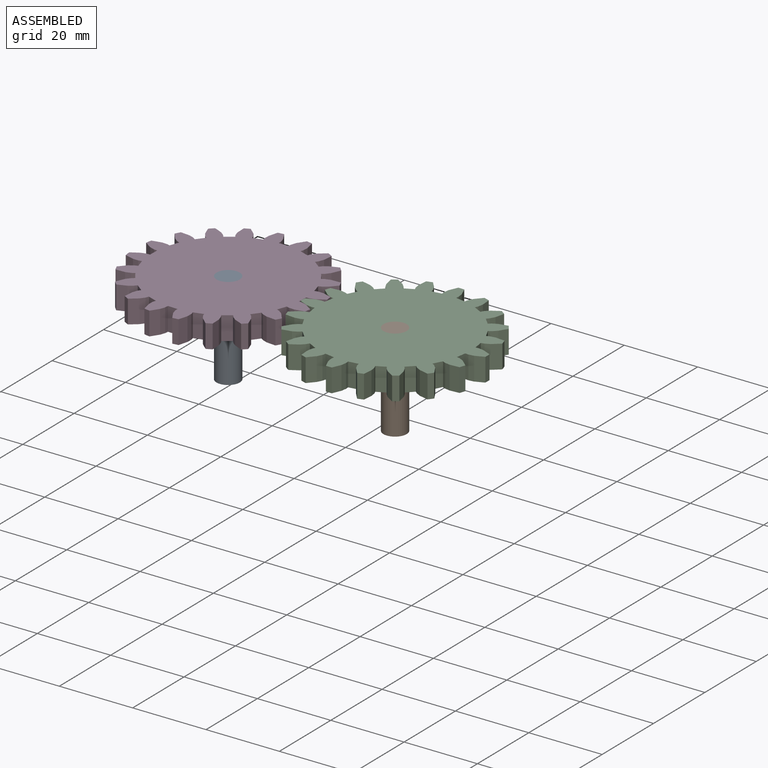
[diagram: assembled view]
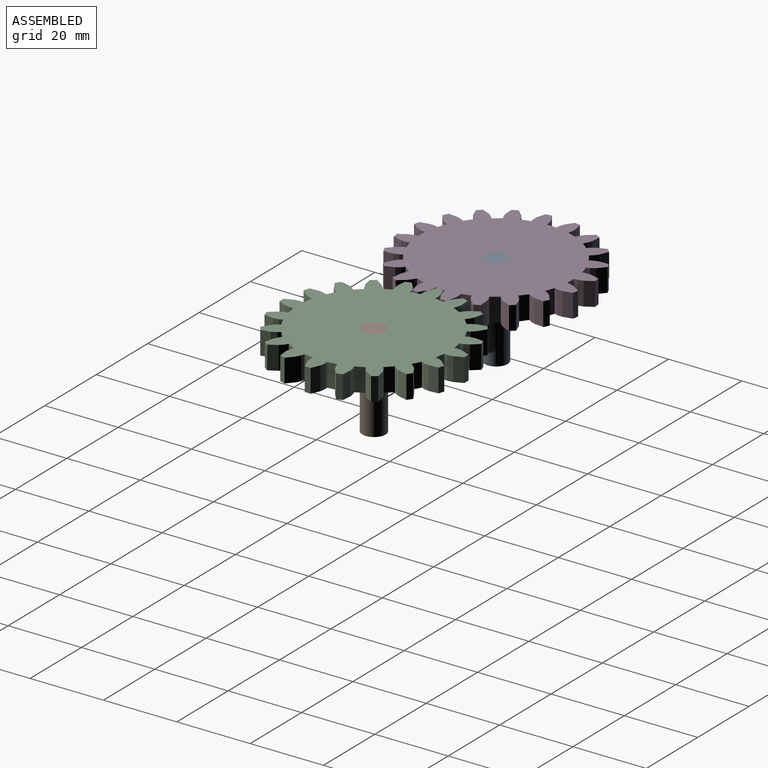
[diagram: assembled view, second angle]
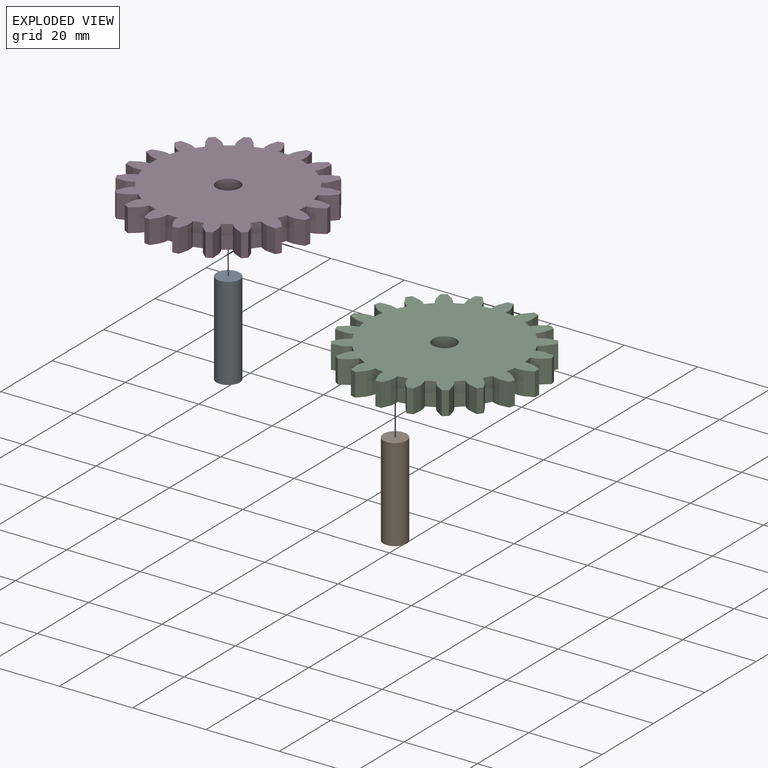
[diagram: exploded view]
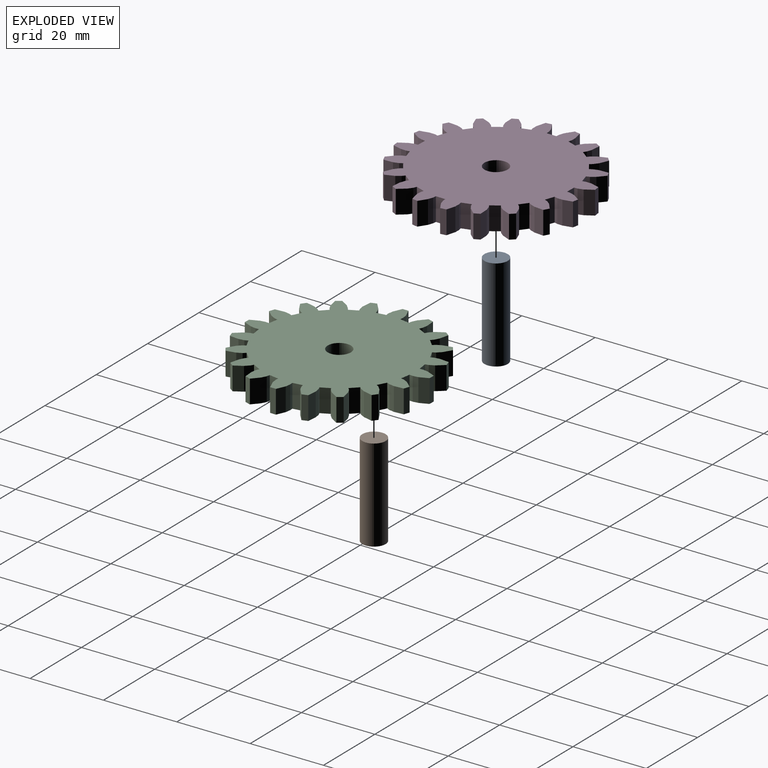
[diagram: exploded view, second angle]
ASSEMBLY  parts=4 mates=2
PART A: 3 faces, bbox 6.4x6.4x25.4 mm
  f0: cylinder r=3.17mm len=25.4mm, axis (0,0,-1), area 506.7mm2, adj f1,f2
  f1: plane 6.35x6.35mm, normal (0,0,1), area 31.7mm2, adj f0
  f2: plane 6.35x6.35mm, normal (0,0,-1), area 31.7mm2, adj f0
PART B: 3 faces, bbox 6.4x6.4x25.4 mm
  f0: cylinder r=3.17mm len=25.4mm, axis (0,0,-1), area 506.7mm2, adj f1,f2
  f1: plane 6.35x6.35mm, normal (0,0,1), area 31.7mm2, adj f0
  f2: plane 6.35x6.35mm, normal (0,0,-1), area 31.7mm2, adj f0
PART C: 163 faces, bbox 50.8x50.8x6.4 mm
  f0: plane 6.35x0.91mm, normal (-0.09,1,0), area 5.8mm2, adj f1,f159,f161,f162
  f1: plane 6.35x2.61mm, normal (0.99,0.16,0), area 16.8mm2, adj f0,f2,f161,f162
  f2: plane 6.35x0.89mm, normal (0.22,-0.98,0), area 5.8mm2, adj f1,f3,f161,f162
  f3: plane 6.35x1.28mm, normal (0.45,-0.89,0), area 9.1mm2, adj f2,f4,f161,f162
  f4: plane 6.35x1.94mm, normal (0.66,-0.75,0), area 16.4mm2, adj f3,f5,f161,f162
  f5: plane 6.35x1.53mm, normal (0.95,0.31,0), area 10.2mm2, adj f4,f6,f161,f162
  f6: plane 6.35x2.57mm, normal (0.09,1,0), area 16.4mm2, adj f5,f7,f161,f162
  f7: plane 6.35x1.41mm, normal (-0.16,0.99,0), area 9.1mm2, adj f6,f8,f161,f162
  f8: plane 6.35x0.84mm, normal (-0.4,0.92,0), area 5.8mm2, adj f7,f9,f161,f162
  f9: plane 6.35x2.36mm, normal (0.89,0.45,0), area 16.8mm2, adj f8,f10,f161,f162
  f10: plane 6.35x0.79mm, normal (0.51,-0.86,0), area 5.8mm2, adj f9,f11,f161,f162
  f11: plane 6.35x1.02mm, normal (0.7,-0.71,0), area 9.1mm2, adj f10,f12,f161,f162
  f12: plane 6.35x2.21mm, normal (0.86,-0.51,0), area 16.4mm2, adj f11,f13,f161,f162
  f13: plane 6.35x1.3mm, normal (0.81,0.59,0), area 10.2mm2, adj f12,f14,f161,f162
  f14: plane 6.35x2.51mm, normal (-0.22,0.97,0), area 16.4mm2, adj f13,f15,f161,f162
  f15: plane 6.35x1.27mm, normal (-0.46,0.89,0), area 9.1mm2, adj f14,f16,f161,f162
  f16: plane 6.35x0.69mm, normal (-0.66,0.75,0), area 5.8mm2, adj f15,f17,f161,f162
  f17: plane 6.35x1.87mm, normal (0.71,0.71,0), area 16.8mm2, adj f16,f18,f161,f162
  f18: plane 6.35x0.69mm, normal (0.75,-0.66,0), area 5.8mm2, adj f17,f19,f161,f162
  f19: plane 6.35x1.27mm, normal (0.89,-0.46,0), area 9.1mm2, adj f18,f20,f161,f162
  f20: plane 6.35x2.51mm, normal (0.97,-0.22,0), area 16.4mm2, adj f19,f21,f161,f162
  f21: plane 6.35x1.3mm, normal (0.59,0.81,0), area 10.2mm2, adj f20,f22,f161,f162
  f22: plane 6.35x2.21mm, normal (-0.51,0.86,0), area 16.4mm2, adj f21,f23,f161,f162
  f23: plane 6.35x1.02mm, normal (-0.71,0.7,0), area 9.1mm2, adj f22,f24,f161,f162
  f24: plane 6.35x0.79mm, normal (-0.86,0.51,0), area 5.8mm2, adj f23,f25,f161,f162
  f25: plane 6.35x2.36mm, normal (0.45,0.89,0), area 16.8mm2, adj f24,f26,f161,f162
  f26: plane 6.35x0.84mm, normal (0.92,-0.4,0), area 5.8mm2, adj f25,f27,f161,f162
  f27: plane 6.35x1.41mm, normal (0.99,-0.16,0), area 9.1mm2, adj f26,f28,f161,f162
  f28: plane 6.35x2.57mm, normal (1,0.09,0), area 16.4mm2, adj f27,f29,f161,f162
  f29: plane 6.35x1.53mm, normal (0.31,0.95,0), area 10.2mm2, adj f28,f30,f161,f162
  f30: plane 6.35x1.94mm, normal (-0.75,0.66,0), area 16.4mm2, adj f29,f31,f161,f162
  f31: plane 6.35x1.28mm, normal (-0.89,0.45,0), area 9.1mm2, adj f30,f32,f161,f162
  f32: plane 6.35x0.89mm, normal (-0.98,0.22,0), area 5.8mm2, adj f31,f33,f161,f162
  f33: plane 6.35x2.61mm, normal (0.16,0.99,0), area 16.8mm2, adj f32,f34,f161,f162
  f34: plane 6.35x0.91mm, normal (1,-0.09,0), area 5.8mm2, adj f33,f35,f161,f162
  f35: plane 6.35x1.42mm, normal (0.99,0.15,0), area 9.1mm2, adj f34,f36,f161,f162
  f36: plane 6.35x2.37mm, normal (0.92,0.39,0), area 16.4mm2, adj f35,f37,f161,f162
  f37: plane 6.35x1.61mm, normal (0,1,0), area 10.2mm2, adj f36,f38,f161,f162
  f38: plane 6.35x2.37mm, normal (-0.92,0.39,0), area 16.4mm2, adj f37,f39,f161,f162
  f39: plane 6.35x1.42mm, normal (-0.99,0.15,0), area 9.1mm2, adj f38,f40,f161,f162
  f40: plane 6.35x0.91mm, normal (-1,-0.09,0), area 5.8mm2, adj f39,f41,f161,f162
  f41: plane 6.35x2.61mm, normal (-0.16,0.99,0), area 16.8mm2, adj f40,f42,f161,f162
  f42: plane 6.35x0.89mm, normal (0.98,0.22,0), area 5.8mm2, adj f41,f43,f161,f162
  f43: plane 6.35x1.28mm, normal (0.89,0.45,0), area 9.1mm2, adj f42,f44,f161,f162
  f44: plane 6.35x1.94mm, normal (0.75,0.66,0), area 16.4mm2, adj f43,f45,f161,f162
  f45: plane 6.35x1.53mm, normal (-0.31,0.95,0), area 10.2mm2, adj f44,f46,f161,f162
  f46: plane 6.35x2.57mm, normal (-1,0.09,0), area 16.4mm2, adj f45,f47,f161,f162
  f47: plane 6.35x1.41mm, normal (-0.99,-0.16,0), area 9.1mm2, adj f46,f48,f161,f162
  f48: plane 6.35x0.84mm, normal (-0.92,-0.4,0), area 5.8mm2, adj f47,f49,f161,f162
  f49: plane 6.35x2.36mm, normal (-0.45,0.89,0), area 16.8mm2, adj f48,f50,f161,f162
  f50: plane 6.35x0.79mm, normal (0.86,0.51,0), area 5.8mm2, adj f49,f51,f161,f162
  f51: plane 6.35x1.02mm, normal (0.71,0.7,0), area 9.1mm2, adj f50,f52,f161,f162
  f52: plane 6.35x2.21mm, normal (0.51,0.86,0), area 16.4mm2, adj f51,f53,f161,f162
  f53: plane 6.35x1.3mm, normal (-0.59,0.81,0), area 10.2mm2, adj f52,f54,f161,f162
  f54: plane 6.35x2.51mm, normal (-0.97,-0.22,0), area 16.4mm2, adj f53,f55,f161,f162
  f55: plane 6.35x1.27mm, normal (-0.89,-0.46,0), area 9.1mm2, adj f54,f56,f161,f162
  f56: plane 6.35x0.69mm, normal (-0.75,-0.66,0), area 5.8mm2, adj f55,f57,f161,f162
  f57: plane 6.35x1.87mm, normal (-0.71,0.71,0), area 16.8mm2, adj f56,f58,f161,f162
  f58: plane 6.35x0.69mm, normal (0.66,0.75,0), area 5.8mm2, adj f57,f59,f161,f162
  f59: plane 6.35x1.27mm, normal (0.46,0.89,0), area 9.1mm2, adj f58,f60,f161,f162
  f60: plane 6.35x2.51mm, normal (0.22,0.97,0), area 16.4mm2, adj f59,f61,f161,f162
  f61: plane 6.35x1.3mm, normal (-0.81,0.59,0), area 10.2mm2, adj f60,f62,f161,f162
  f62: plane 6.35x2.21mm, normal (-0.86,-0.51,0), area 16.4mm2, adj f61,f63,f161,f162
  f63: plane 6.35x1.02mm, normal (-0.7,-0.71,0), area 9.1mm2, adj f62,f64,f161,f162
  f64: plane 6.35x0.79mm, normal (-0.51,-0.86,0), area 5.8mm2, adj f63,f65,f161,f162
  f65: plane 6.35x2.36mm, normal (-0.89,0.45,0), area 16.8mm2, adj f64,f66,f161,f162
  f66: plane 6.35x0.84mm, normal (0.4,0.92,0), area 5.8mm2, adj f65,f67,f161,f162
  f67: plane 6.35x1.41mm, normal (0.16,0.99,0), area 9.1mm2, adj f66,f68,f161,f162
  f68: plane 6.35x2.57mm, normal (-0.09,1,0), area 16.4mm2, adj f67,f69,f161,f162
  f69: plane 6.35x1.53mm, normal (-0.95,0.31,0), area 10.2mm2, adj f68,f70,f161,f162
  f70: plane 6.35x1.94mm, normal (-0.66,-0.75,0), area 16.4mm2, adj f69,f71,f161,f162
  f71: plane 6.35x1.28mm, normal (-0.45,-0.89,0), area 9.1mm2, adj f70,f72,f161,f162
  f72: plane 6.35x0.89mm, normal (-0.22,-0.98,0), area 5.8mm2, adj f71,f73,f161,f162
  f73: plane 6.35x2.61mm, normal (-0.99,0.16,0), area 16.8mm2, adj f72,f74,f161,f162
  f74: plane 6.35x0.91mm, normal (0.09,1,0), area 5.8mm2, adj f73,f75,f161,f162
  f75: plane 6.35x1.42mm, normal (-0.15,0.99,0), area 9.1mm2, adj f74,f76,f161,f162
  f76: plane 6.35x2.37mm, normal (-0.39,0.92,0), area 16.4mm2, adj f75,f77,f161,f162
  f77: plane 6.35x1.61mm, normal (-1,0,0), area 10.2mm2, adj f76,f78,f161,f162
  f78: plane 6.35x2.37mm, normal (-0.39,-0.92,0), area 16.4mm2, adj f77,f79,f161,f162
  f79: plane 6.35x1.42mm, normal (-0.15,-0.99,0), area 9.1mm2, adj f78,f80,f161,f162
  f80: plane 6.35x0.91mm, normal (0.09,-1,0), area 5.8mm2, adj f79,f81,f161,f162
  f81: plane 6.35x2.61mm, normal (-0.99,-0.16,0), area 16.8mm2, adj f80,f82,f161,f162
  f82: plane 6.35x0.89mm, normal (-0.22,0.98,0), area 5.8mm2, adj f81,f83,f161,f162
  f83: plane 6.35x1.28mm, normal (-0.45,0.89,0), area 9.1mm2, adj f82,f84,f161,f162
  f84: plane 6.35x1.94mm, normal (-0.66,0.75,0), area 16.4mm2, adj f83,f85,f161,f162
  f85: plane 6.35x1.53mm, normal (-0.95,-0.31,0), area 10.2mm2, adj f84,f86,f161,f162
  f86: plane 6.35x2.57mm, normal (-0.09,-1,0), area 16.4mm2, adj f85,f87,f161,f162
  f87: plane 6.35x1.41mm, normal (0.16,-0.99,0), area 9.1mm2, adj f86,f88,f161,f162
  f88: plane 6.35x0.84mm, normal (0.4,-0.92,0), area 5.8mm2, adj f87,f89,f161,f162
  f89: plane 6.35x2.36mm, normal (-0.89,-0.45,0), area 16.8mm2, adj f88,f90,f161,f162
  f90: plane 6.35x0.79mm, normal (-0.51,0.86,0), area 5.8mm2, adj f89,f91,f161,f162
  f91: plane 6.35x1.02mm, normal (-0.7,0.71,0), area 9.1mm2, adj f90,f92,f161,f162
  f92: plane 6.35x2.21mm, normal (-0.86,0.51,0), area 16.4mm2, adj f91,f93,f161,f162
  f93: plane 6.35x1.3mm, normal (-0.81,-0.59,0), area 10.2mm2, adj f92,f94,f161,f162
  f94: plane 6.35x2.51mm, normal (0.22,-0.97,0), area 16.4mm2, adj f93,f95,f161,f162
  f95: plane 6.35x1.27mm, normal (0.46,-0.89,0), area 9.1mm2, adj f94,f96,f161,f162
  f96: plane 6.35x0.69mm, normal (0.66,-0.75,0), area 5.8mm2, adj f95,f97,f161,f162
  f97: plane 6.35x1.87mm, normal (-0.71,-0.71,0), area 16.8mm2, adj f96,f98,f161,f162
  f98: plane 6.35x0.69mm, normal (-0.75,0.66,0), area 5.8mm2, adj f97,f99,f161,f162
  f99: plane 6.35x1.27mm, normal (-0.89,0.46,0), area 9.1mm2, adj f98,f100,f161,f162
  f100: plane 6.35x2.51mm, normal (-0.97,0.22,0), area 16.4mm2, adj f99,f101,f161,f162
  f101: plane 6.35x1.3mm, normal (-0.59,-0.81,0), area 10.2mm2, adj f100,f102,f161,f162
  f102: plane 6.35x2.21mm, normal (0.51,-0.86,0), area 16.4mm2, adj f101,f103,f161,f162
  f103: plane 6.35x1.02mm, normal (0.71,-0.7,0), area 9.1mm2, adj f102,f104,f161,f162
  f104: plane 6.35x0.79mm, normal (0.86,-0.51,0), area 5.8mm2, adj f103,f105,f161,f162
  f105: plane 6.35x2.36mm, normal (-0.45,-0.89,0), area 16.8mm2, adj f104,f106,f161,f162
  f106: plane 6.35x0.84mm, normal (-0.92,0.4,0), area 5.8mm2, adj f105,f107,f161,f162
  f107: plane 6.35x1.41mm, normal (-0.99,0.16,0), area 9.1mm2, adj f106,f108,f161,f162
  f108: plane 6.35x2.57mm, normal (-1,-0.09,0), area 16.4mm2, adj f107,f109,f161,f162
  f109: plane 6.35x1.53mm, normal (-0.31,-0.95,0), area 10.2mm2, adj f108,f110,f161,f162
  f110: plane 6.35x1.94mm, normal (0.75,-0.66,0), area 16.4mm2, adj f109,f111,f161,f162
  f111: plane 6.35x1.28mm, normal (0.89,-0.45,0), area 9.1mm2, adj f110,f112,f161,f162
  f112: plane 6.35x0.89mm, normal (0.98,-0.22,0), area 5.8mm2, adj f111,f113,f161,f162
  f113: plane 6.35x2.61mm, normal (-0.16,-0.99,0), area 16.8mm2, adj f112,f114,f161,f162
  f114: plane 6.35x0.91mm, normal (-1,0.09,0), area 5.8mm2, adj f113,f115,f161,f162
  f115: plane 6.35x1.42mm, normal (-0.99,-0.15,0), area 9.1mm2, adj f114,f116,f161,f162
  f116: plane 6.35x2.37mm, normal (-0.92,-0.39,0), area 16.4mm2, adj f115,f117,f161,f162
  f117: plane 6.35x1.61mm, normal (0,-1,0), area 10.2mm2, adj f116,f118,f161,f162
  f118: plane 6.35x2.37mm, normal (0.92,-0.39,0), area 16.4mm2, adj f117,f119,f161,f162
  f119: plane 6.35x1.42mm, normal (0.99,-0.15,0), area 9.1mm2, adj f118,f120,f161,f162
  f120: plane 6.35x0.91mm, normal (1,0.09,0), area 5.8mm2, adj f119,f121,f161,f162
  f121: plane 6.35x2.61mm, normal (0.16,-0.99,0), area 16.8mm2, adj f120,f122,f161,f162
  f122: plane 6.35x0.89mm, normal (-0.98,-0.22,0), area 5.8mm2, adj f121,f123,f161,f162
  f123: plane 6.35x1.28mm, normal (-0.89,-0.45,0), area 9.1mm2, adj f122,f124,f161,f162
  f124: plane 6.35x1.94mm, normal (-0.75,-0.66,0), area 16.4mm2, adj f123,f125,f161,f162
  f125: plane 6.35x1.53mm, normal (0.31,-0.95,0), area 10.2mm2, adj f124,f126,f161,f162
  f126: plane 6.35x2.57mm, normal (1,-0.09,0), area 16.4mm2, adj f125,f127,f161,f162
  f127: plane 6.35x1.41mm, normal (0.99,0.16,0), area 9.1mm2, adj f126,f128,f161,f162
  f128: plane 6.35x0.84mm, normal (0.92,0.4,0), area 5.8mm2, adj f127,f129,f161,f162
  f129: plane 6.35x2.36mm, normal (0.45,-0.89,0), area 16.8mm2, adj f128,f130,f161,f162
  f130: plane 6.35x0.79mm, normal (-0.86,-0.51,0), area 5.8mm2, adj f129,f131,f161,f162
  f131: plane 6.35x1.02mm, normal (-0.71,-0.7,0), area 9.1mm2, adj f130,f132,f161,f162
  f132: plane 6.35x2.21mm, normal (-0.51,-0.86,0), area 16.4mm2, adj f131,f133,f161,f162
  f133: plane 6.35x1.3mm, normal (0.59,-0.81,0), area 10.2mm2, adj f132,f134,f161,f162
  f134: plane 6.35x2.51mm, normal (0.97,0.22,0), area 16.4mm2, adj f133,f135,f161,f162
  f135: plane 6.35x1.27mm, normal (0.89,0.46,0), area 9.1mm2, adj f134,f136,f161,f162
  f136: plane 6.35x0.69mm, normal (0.75,0.66,0), area 5.8mm2, adj f135,f137,f161,f162
  f137: plane 6.35x1.87mm, normal (0.71,-0.71,0), area 16.8mm2, adj f136,f138,f161,f162
  f138: plane 6.35x0.69mm, normal (-0.66,-0.75,0), area 5.8mm2, adj f137,f139,f161,f162
  f139: plane 6.35x1.27mm, normal (-0.46,-0.89,0), area 9.1mm2, adj f138,f140,f161,f162
  f140: plane 6.35x2.51mm, normal (-0.22,-0.97,0), area 16.4mm2, adj f139,f141,f161,f162
  f141: plane 6.35x1.3mm, normal (0.81,-0.59,0), area 10.2mm2, adj f140,f142,f161,f162
  f142: plane 6.35x2.21mm, normal (0.86,0.51,0), area 16.4mm2, adj f141,f143,f161,f162
  f143: plane 6.35x1.02mm, normal (0.7,0.71,0), area 9.1mm2, adj f142,f144,f161,f162
  f144: plane 6.35x0.79mm, normal (0.51,0.86,0), area 5.8mm2, adj f143,f145,f161,f162
  f145: plane 6.35x2.36mm, normal (0.89,-0.45,0), area 16.8mm2, adj f144,f146,f161,f162
  f146: plane 6.35x0.84mm, normal (-0.4,-0.92,0), area 5.8mm2, adj f145,f147,f161,f162
  f147: plane 6.35x1.41mm, normal (-0.16,-0.99,0), area 9.1mm2, adj f146,f148,f161,f162
  f148: plane 6.35x2.57mm, normal (0.09,-1,0), area 16.4mm2, adj f147,f149,f161,f162
  f149: plane 6.35x1.53mm, normal (0.95,-0.31,0), area 10.2mm2, adj f148,f150,f161,f162
  f150: plane 6.35x1.94mm, normal (0.66,0.75,0), area 16.4mm2, adj f149,f151,f161,f162
  f151: plane 6.35x1.28mm, normal (0.45,0.89,0), area 9.1mm2, adj f150,f152,f161,f162
  f152: plane 6.35x0.89mm, normal (0.22,0.98,0), area 5.8mm2, adj f151,f153,f161,f162
  f153: plane 6.35x2.61mm, normal (0.99,-0.16,0), area 16.8mm2, adj f152,f154,f161,f162
  f154: plane 6.35x0.91mm, normal (-0.09,-1,0), area 5.8mm2, adj f153,f155,f161,f162
  f155: plane 6.35x1.42mm, normal (0.15,-0.99,0), area 9.1mm2, adj f154,f156,f161,f162
  f156: plane 6.35x2.37mm, normal (0.39,-0.92,0), area 16.4mm2, adj f155,f157,f161,f162
  f157: plane 6.35x1.61mm, normal (1,0,0), area 10.2mm2, adj f156,f158,f161,f162
  f158: plane 6.35x2.37mm, normal (0.39,0.92,0), area 16.4mm2, adj f157,f159,f161,f162
  f159: plane 6.35x1.42mm, normal (0.15,0.99,0), area 9.1mm2, adj f0,f158,f161,f162
  f160: cylinder r=3.17mm len=6.35mm, axis (0,0,-1), area 126.7mm2, adj f161,f162
  f161: plane 50.8x50.8mm, normal (0,0,1), area 1625.4mm2, adj f0,f1,f2,f3,f4,f5,f6,f7
  f162: plane 50.8x50.8mm, normal (0,0,-1), area 1625.4mm2, adj f0,f1,f2,f3,f4,f5,f6,f7
PART D: same geometry as C
PLACE A rot(axis=(0,0,1),7.3deg) t=(-3.31,9.81,0)mm
PLACE B rot(axis=(0,0,1),17.3deg) t=(1.61,3.96,0)mm
PLACE C rot(axis=(0,0,1),17.3deg) t=(-0.73,3.23,6.35)mm
PLACE D rot(axis=(0,0,1),7.3deg) t=(-46.91,4.19,6.35)mm
MATE revolute C.f160 <-> B.f0  axis (0,0,1) through (-0.73,3.23,12.7)mm
MATE revolute D.f160 <-> A.f0  axis (0,0,1) through (-46.91,4.19,12.7)mm
